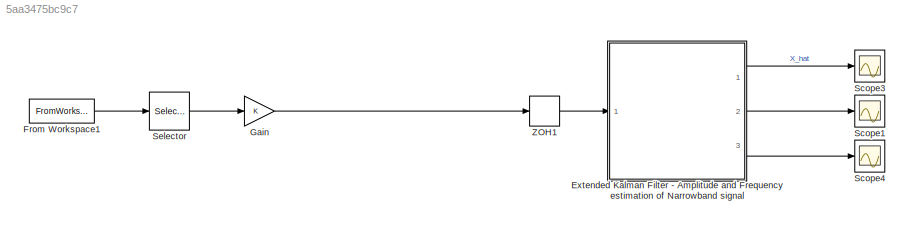
MODEL slx_5aa3475bc9c7
KIND model
CONFIG AbsTol = 1e-6
CONFIG EnableMultiTasking = off
CONFIG FixedStep = 0.06
CONFIG MaxStep = 0.1
CONFIG MinStep = auto
CONFIG RelTol = 1e-3
CONFIG SampleTimeConstraint = Unconstrained
CONFIG Solver = ode4
CONFIG SolverName = ode4
CONFIG StartFcn = clear radarLogsOut
CONFIG StartTime = 0.0
CONFIG StopFcn = aero_radplot;
CONFIG StopTime = 300
WORKSPACE source: MATLAB code (in-file)
WORKSPACE dt = 0.02
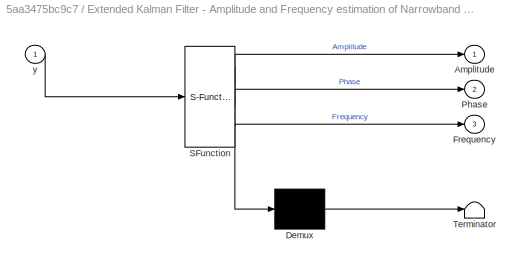
BLOCK [SubSystem] Extended Kalman Filter - Amplitude and Frequency estimation of Narrowband signal
  ErrorFcn = Stateflow.Translate.translate
  PermitHierarchicalResolution = ExplicitOnly
  Ports = [1, 3]
  RequestExecContextInheritance = off
  SFBlockType = MATLAB Function
  TreatAsAtomicUnit = on
BLOCK [Demux] Extended Kalman Filter - Amplitude and Frequency estimation of Narrowband signal/ Demux 
  Outputs = 1
  Ports = [1, 1]
BLOCK [S-Function] Extended Kalman Filter - Amplitude and Frequency estimation of Narrowband signal/ SFunction 
  EnableBusSupport = on
  FunctionName = sf_sfun
  PortCounts = [1 4]
  Ports = [1, 4]
  SFcnIsStateOwnerBlock = off
  SFunctionDeploymentMode = off
  Tag = Stateflow S-Function EKF_only 1
BLOCK [Terminator] Extended Kalman Filter - Amplitude and Frequency estimation of Narrowband signal/ Terminator 
BLOCK [Outport] Extended Kalman Filter - Amplitude and Frequency estimation of Narrowband signal/Amplitude
  IconDisplay = Port number
BLOCK [Outport] Extended Kalman Filter - Amplitude and Frequency estimation of Narrowband signal/Frequency
  IconDisplay = Port number
  Port = 3
BLOCK [Outport] Extended Kalman Filter - Amplitude and Frequency estimation of Narrowband signal/Phase
  IconDisplay = Port number
  Port = 2
BLOCK [Inport] Extended Kalman Filter - Amplitude and Frequency estimation of Narrowband signal/y
  IconDisplay = Port number
BLOCK [FromWorkspace] From Workspace1
  SampleTime = 0
  VariableName = Fex_3_10
  ZeroCross = on
BLOCK [Gain] Gain
  OutDataTypeStr = Inherit: Inherit via internal rule
  ParamDataTypeStr = Inherit: Inherit via internal rule
  SaturateOnIntegerOverflow = off
BLOCK [Scope] Scope1
  Floating = off
  NumInputPorts = 1
  Ports = [1]
  ScopeSpecificationString = Simulink.scopes.TimeScopeBlockCfg('CurrentConfiguration', extmgr.ConfigurationSet(extmgr.Configuration('Core','General UI',true),extmgr.Configuration('Core','Source UI',true),extmgr.Configuration('Sources','WiredSimulink',true,'DataLoggingVariableName','ScopeData1','DataLoggingSaveFormat','StructureWithTime','DataLoggingDecimation','1','DataLoggingDecimateData',true),extmgr.Configuration('Visuals'...<+1861ch>
BLOCK [Scope] Scope3
  Floating = off
  NumInputPorts = 1
  Ports = [1]
  ScopeSpecificationString = Simulink.scopes.TimeScopeBlockCfg('CurrentConfiguration', extmgr.ConfigurationSet(extmgr.Configuration('Core','General UI',true),extmgr.Configuration('Core','Source UI',true),extmgr.Configuration('Sources','WiredSimulink',true,'DataLoggingVariableName','ScopeData3','DataLoggingSaveFormat','StructureWithTime','DataLoggingDecimation','1','DataLoggingDecimateData',true),extmgr.Configuration('Visuals'...<+1733ch>
BLOCK [Scope] Scope4
  Floating = off
  NumInputPorts = 1
  Ports = [1]
  ScopeSpecificationString = Simulink.scopes.TimeScopeBlockCfg('CurrentConfiguration', extmgr.ConfigurationSet(extmgr.Configuration('Core','General UI',true),extmgr.Configuration('Core','Source UI',true),extmgr.Configuration('Sources','WiredSimulink',true,'DataLoggingVariableName','ScopeData3','DataLoggingSaveFormat','StructureWithTime','DataLoggingDecimation','1','DataLoggingDecimateData',true),extmgr.Configuration('Visuals'...<+1818ch>
BLOCK [Selector] Selector
  IndexOptions = Index vector (dialog)
  Indices = 1
  InputPortWidth = 6
  OutputSizes = 1
  Ports = [1, 1]
BLOCK [ZeroOrderHold] ZOH1
  SampleTime = 0.06
LINE Extended Kalman Filter - Amplitude and Frequency estimation of Narrowband signal:1 -> Scope3:1
LINE Extended Kalman Filter - Amplitude and Frequency estimation of Narrowband signal:2 -> Scope1:1
LINE Extended Kalman Filter - Amplitude and Frequency estimation of Narrowband signal:3 -> Scope4:1
LINE From Workspace1:1 -> Selector:1
LINE Gain:1 -> ZOH1:1
LINE Selector:1 -> Gain:1
LINE ZOH1:1 -> Extended Kalman Filter - Amplitude and Frequency estimation of Narrowband signal:1
CHART Extended Kalman Filter - Amplitude
and Frequency estimation of
Narrowband signal states=1 transitions=1
  STATE_LABEL 'eML_blk_kernel()'
  STATE_LABEL "SCRIPT:\nfunction [Amplitude, Phase, Frequency]   = EKF_narrowband(y)\n\n% Initialization\npersistent P;\npersistent x;\n\ndt = 0.06; %edit this to match your timestep\n\nif isempty(P)\n    x = [0 0 0.1]';       %state estimate\n    P = diag([1e0 1e0 1e0]);    %Covariance matrix\nend\n\n%%%%%%%%%%%From Fusco thesis%%%%%%%%%%%%%%%%%%%%%\n%%%State vector X = [a theta w]\nx1 = x(1);  %Amplitude\nx2 = x(2);  %Phase\nw ...<+761ch>"
